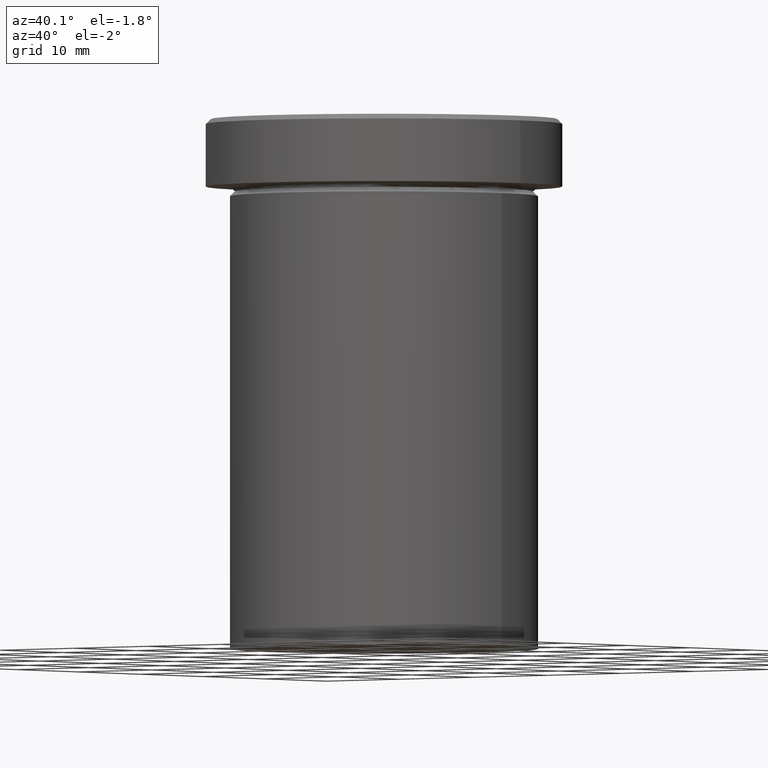
[diagram: clean part render]
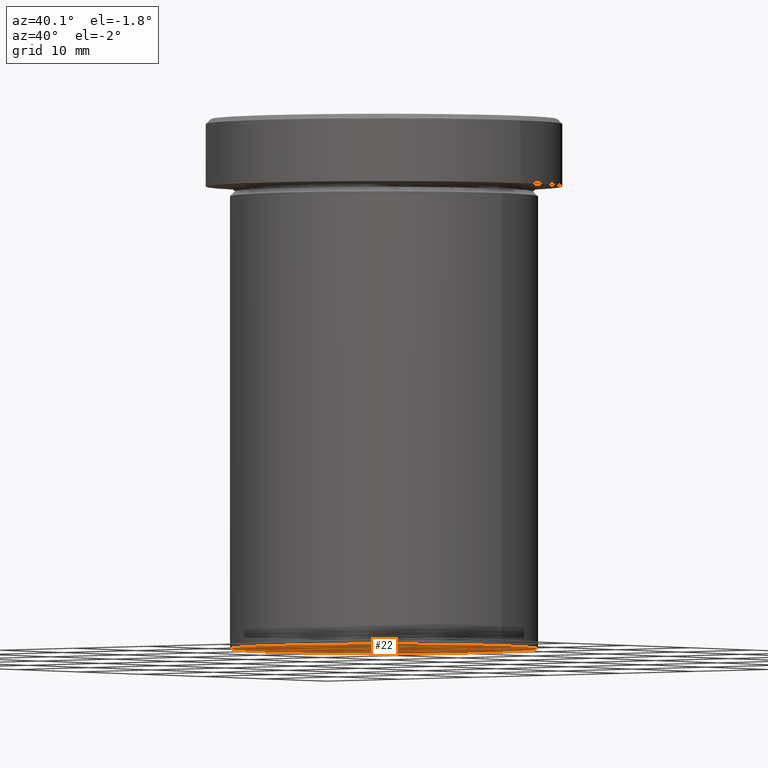
[diagram: same view with one face highlighted and labeled with its STEP entity id]
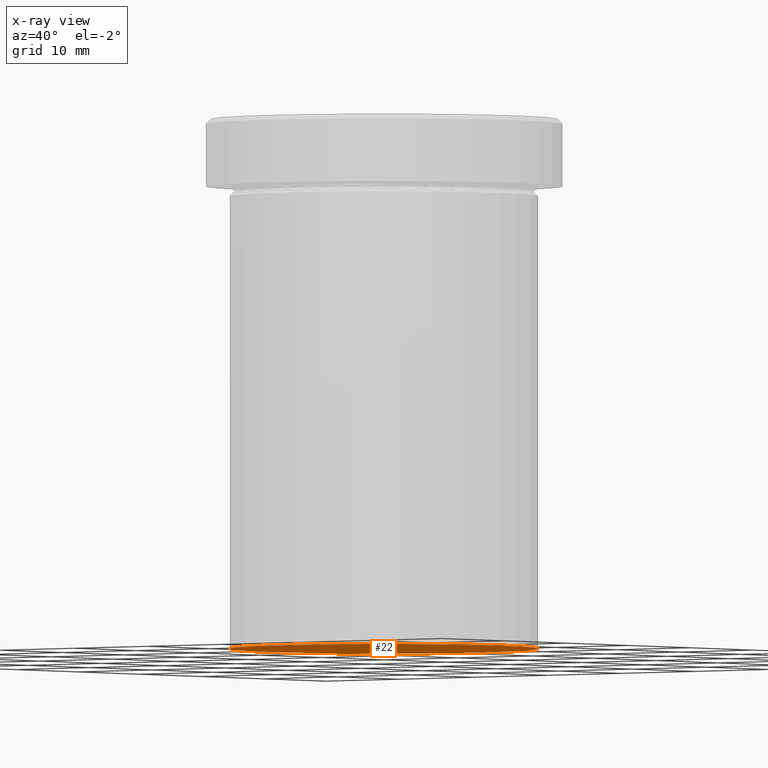
[diagram: x-ray of the same camera — body ghosted, the highlighted face saturated]
A machine part, auxiliary view. The second image highlights one B-rep face of the part: STEP entity #22.
The next image is the same camera in x-ray: the body ghosted, the highlighted face saturated — about 0% of this face is hidden behind the body in this view.
In plain terms, the highlighted planar face has unit normal (0, 0, -1).
Its self-contained STEP definition (entity closure, byte-faithful):
#22 = ADVANCED_FACE ( 'NONE', ( #395 ), #147, .T. ) ;
#70 = CARTESIAN_POINT ( 'NONE',  ( 0.000000000000000000, 0.000000000000000000, -54.99999999999999289 ) ) ;
#75 = CIRCLE ( 'NONE', #270, 16.00000000000000000 ) ;
#110 = DIRECTION ( 'NONE',  ( -1.000000000000000000, 0.000000000000000000, -0.000000000000000000 ) ) ;
#111 = DIRECTION ( 'NONE',  ( -0.000000000000000000, -0.000000000000000000, 1.000000000000000000 ) ) ;
#112 = CARTESIAN_POINT ( 'NONE',  ( 0.000000000000000000, 16.00000000000000000, -54.99999999999999289 ) ) ;
#136 = VERTEX_POINT ( 'NONE', #247 ) ;
#144 = AXIS2_PLACEMENT_3D ( 'NONE', #112, #234, #110 ) ;
#147 = PLANE ( 'NONE',  #144 ) ;
#152 = AXIS2_PLACEMENT_3D ( 'NONE', #70, #111, #211 ) ;
#158 = CIRCLE ( 'NONE', #152, 16.00000000000000000 ) ;
#166 = EDGE_CURVE ( 'NONE', #325, #136, #75, .T. ) ;
#171 = DIRECTION ( 'NONE',  ( -0.000000000000000000, -0.000000000000000000, 1.000000000000000000 ) ) ;
#192 = EDGE_LOOP ( 'NONE', ( #202, #360 ) ) ;
#202 = ORIENTED_EDGE ( 'NONE', *, *, #398, .F. ) ;
#211 = DIRECTION ( 'NONE',  ( 1.000000000000000000, 0.000000000000000000, 0.000000000000000000 ) ) ;
#231 = CARTESIAN_POINT ( 'NONE',  ( 0.000000000000000000, 0.000000000000000000, -54.99999999999999289 ) ) ;
#234 = DIRECTION ( 'NONE',  ( 0.000000000000000000, 0.000000000000000000, -1.000000000000000000 ) ) ;
#247 = CARTESIAN_POINT ( 'NONE',  ( 16.00000000000000000, 0.000000000000000000, -54.99999999999999289 ) ) ;
#270 = AXIS2_PLACEMENT_3D ( 'NONE', #231, #171, #334 ) ;
#300 = CARTESIAN_POINT ( 'NONE',  ( -16.00000000000000000, 1.959434878635765131E-15, -54.99999999999999289 ) ) ;
#325 = VERTEX_POINT ( 'NONE', #300 ) ;
#334 = DIRECTION ( 'NONE',  ( 1.000000000000000000, 0.000000000000000000, 0.000000000000000000 ) ) ;
#360 = ORIENTED_EDGE ( 'NONE', *, *, #166, .F. ) ;
#395 = FACE_OUTER_BOUND ( 'NONE', #192, .T. ) ;
#398 = EDGE_CURVE ( 'NONE', #136, #325, #158, .T. ) ;